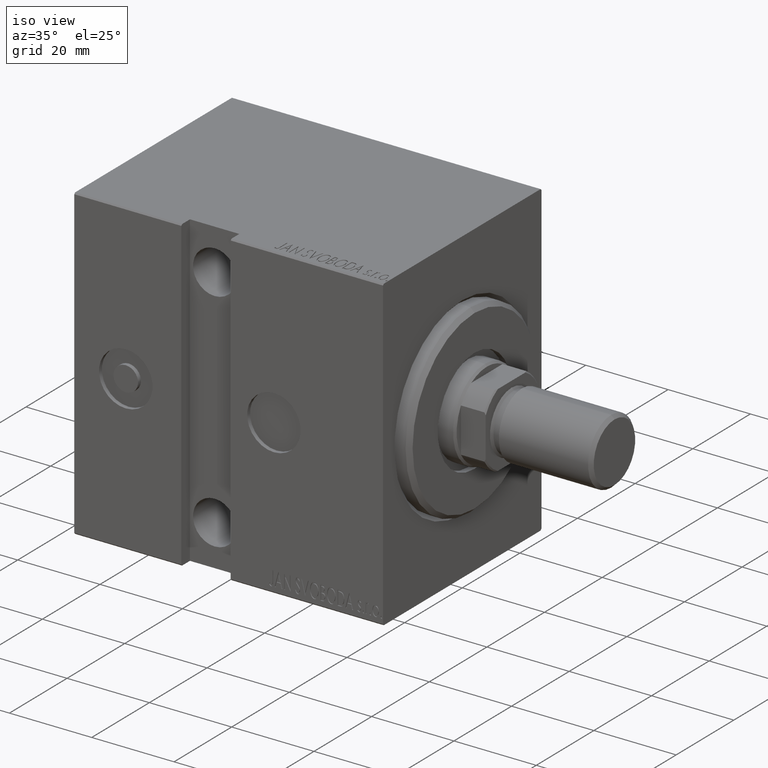
[diagram: clean part render]
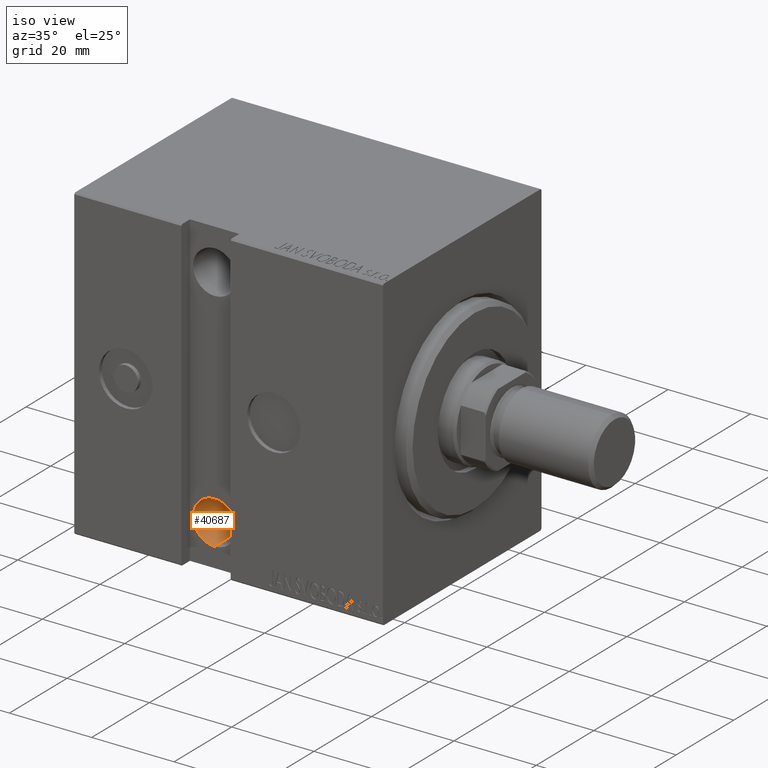
[diagram: same view with one face highlighted and labeled with its STEP entity id]
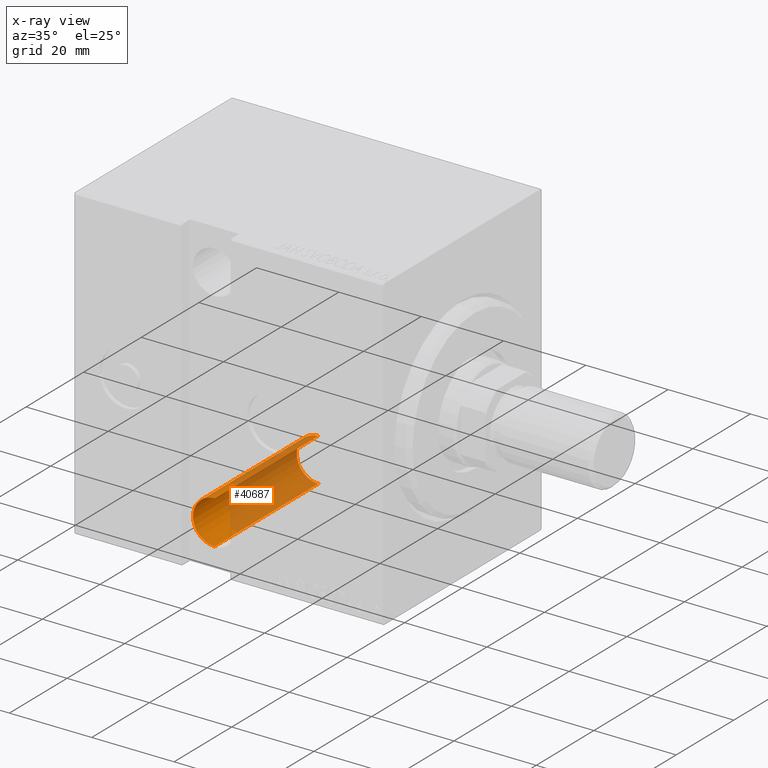
[diagram: x-ray of the same camera — body ghosted, the highlighted face saturated]
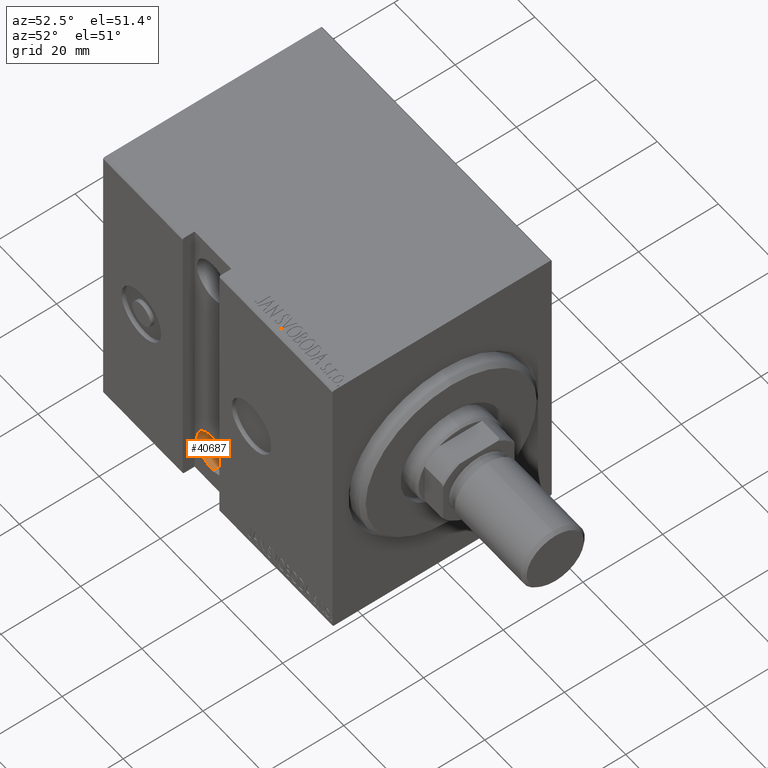
[diagram: same view with one face highlighted and labeled with its STEP entity id]
A machine part, iso view. The second image highlights one B-rep face of the part: STEP entity #40687.
The next image is the same camera in x-ray: the body ghosted, the highlighted face saturated — about 71% of this face is hidden behind the body in this view.
A second angle (auxiliary view) of the same face is appended — the face is thin or edge-on in the first view.
In plain terms, the highlighted cylindrical surface (edge-blend (fillet) strip) has radius 5.25 mm, axis along (0, -1, 0).
Its self-contained STEP definition (entity closure, byte-faithful):
#1013 = EDGE_CURVE ( 'NONE', #8742, #12125, #25114, .T. ) ;
#3110 = ORIENTED_EDGE ( 'NONE', *, *, #16540, .F. ) ;
#4150 = DIRECTION ( 'NONE',  ( 0.000000000000000000, 0.000000000000000000, 1.000000000000000000 ) ) ;
#4577 = CYLINDRICAL_SURFACE ( 'NONE', #32893, 5.249999999999997335 ) ;
#6127 = EDGE_CURVE ( 'NONE', #12125, #29850, #28772, .T. ) ;
#7436 = LINE ( 'NONE', #20234, #40058 ) ;
#7764 = DIRECTION ( 'NONE',  ( 0.000000000000000000, -1.000000000000000000, 0.000000000000000000 ) ) ;
#8742 = VERTEX_POINT ( 'NONE', #9952 ) ;
#9788 = ORIENTED_EDGE ( 'NONE', *, *, #1013, .F. ) ;
#9952 = CARTESIAN_POINT ( 'NONE',  ( 43.00000000000001421, -11.50000000000000533, -22.25000000000000355 ) ) ;
#10105 = CIRCLE ( 'NONE', #19124, 5.249999999999994671 ) ;
#10879 = FACE_OUTER_BOUND ( 'NONE', #19168, .T. ) ;
#11084 = CARTESIAN_POINT ( 'NONE',  ( 43.00000000000001421, -27.50000000000002487, -27.50000000000000000 ) ) ;
#12125 = VERTEX_POINT ( 'NONE', #35536 ) ;
#13180 = VERTEX_POINT ( 'NONE', #14820 ) ;
#14058 = CARTESIAN_POINT ( 'NONE',  ( 43.00000000000001421, 24.50000000000000000, -27.50000000000000000 ) ) ;
#14820 = CARTESIAN_POINT ( 'NONE',  ( 43.00000000000001421, 24.50000000000000000, -22.25000000000000355 ) ) ;
#16540 = EDGE_CURVE ( 'NONE', #29850, #13180, #10105, .T. ) ;
#17193 = DIRECTION ( 'NONE',  ( -0.000000000000000000, 1.000000000000000000, -0.000000000000000000 ) ) ;
#18204 = ORIENTED_EDGE ( 'NONE', *, *, #6127, .F. ) ;
#18304 = CARTESIAN_POINT ( 'NONE',  ( 43.00000000000001421, 24.50000000000000000, -32.74999999999999289 ) ) ;
#19124 = AXIS2_PLACEMENT_3D ( 'NONE', #14058, #7764, #34466 ) ;
#19168 = EDGE_LOOP ( 'NONE', ( #18204, #9788, #23940, #3110 ) ) ;
#19415 = CARTESIAN_POINT ( 'NONE',  ( 43.00000000000001421, -27.50000000000002487, -32.74999999999999289 ) ) ;
#20234 = CARTESIAN_POINT ( 'NONE',  ( 43.00000000000001421, -27.50000000000002487, -22.25000000000000355 ) ) ;
#20679 = EDGE_CURVE ( 'NONE', #8742, #13180, #7436, .T. ) ;
#23688 = DIRECTION ( 'NONE',  ( -0.000000000000000000, 1.000000000000000000, -0.000000000000000000 ) ) ;
#23848 = VECTOR ( 'NONE', #38334, 1000.000000000000000 ) ;
#23940 = ORIENTED_EDGE ( 'NONE', *, *, #20679, .T. ) ;
#25114 = CIRCLE ( 'NONE', #37605, 5.249999999999994671 ) ;
#27137 = DIRECTION ( 'NONE',  ( -0.000000000000000000, 1.000000000000000000, -1.963837897332234442E-16 ) ) ;
#27351 = CARTESIAN_POINT ( 'NONE',  ( 43.00000000000001421, -11.50000000000000711, -27.50000000000000000 ) ) ;
#27772 = DIRECTION ( 'NONE',  ( 0.000000000000000000, -3.304235192336778963E-16, -1.000000000000000000 ) ) ;
#28772 = LINE ( 'NONE', #19415, #23848 ) ;
#29850 = VERTEX_POINT ( 'NONE', #18304 ) ;
#32893 = AXIS2_PLACEMENT_3D ( 'NONE', #11084, #23688, #4150 ) ;
#34466 = DIRECTION ( 'NONE',  ( 0.000000000000000000, 0.000000000000000000, -1.000000000000000000 ) ) ;
#35536 = CARTESIAN_POINT ( 'NONE',  ( 43.00000000000001421, -11.50000000000000888, -32.74999999999999289 ) ) ;
#37605 = AXIS2_PLACEMENT_3D ( 'NONE', #27351, #27137, #27772 ) ;
#38334 = DIRECTION ( 'NONE',  ( -0.000000000000000000, 1.000000000000000000, -0.000000000000000000 ) ) ;
#40058 = VECTOR ( 'NONE', #17193, 1000.000000000000000 ) ;
#40687 = ADVANCED_FACE ( 'NONE', ( #10879 ), #4577, .F. ) ;